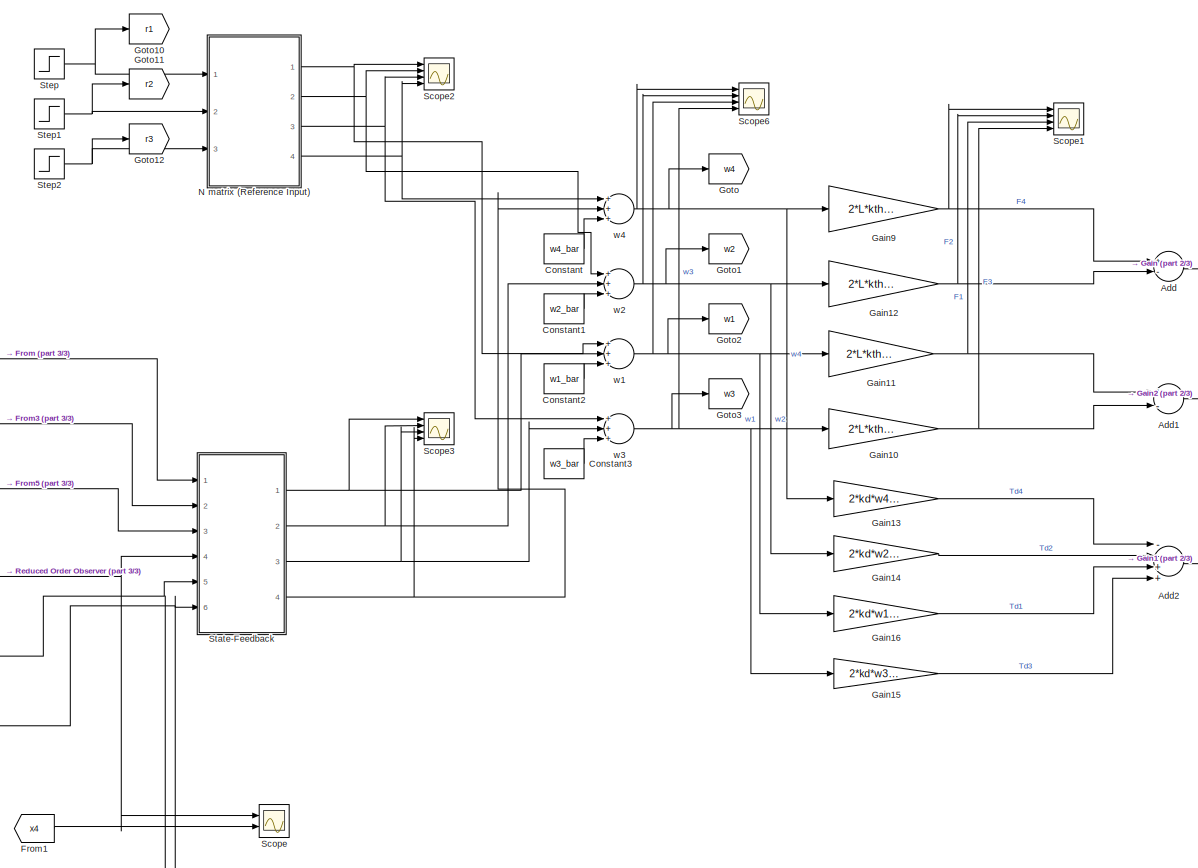
[diagram: root canvas - part 1/3, center side, full height]
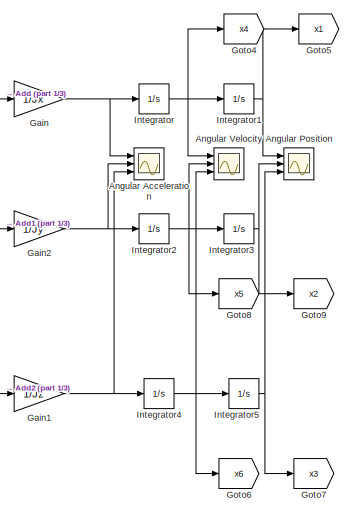
[diagram: root canvas - part 2/3, middle right region]
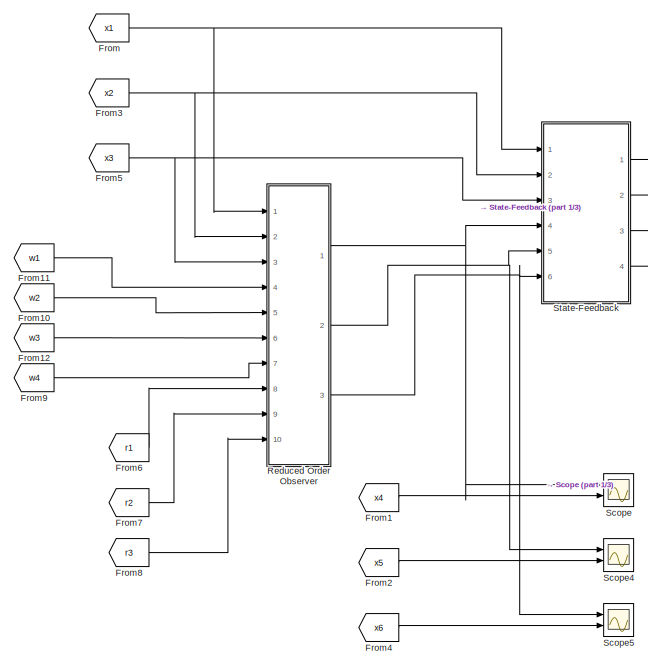
[diagram: root canvas - part 3/3, middle left region]
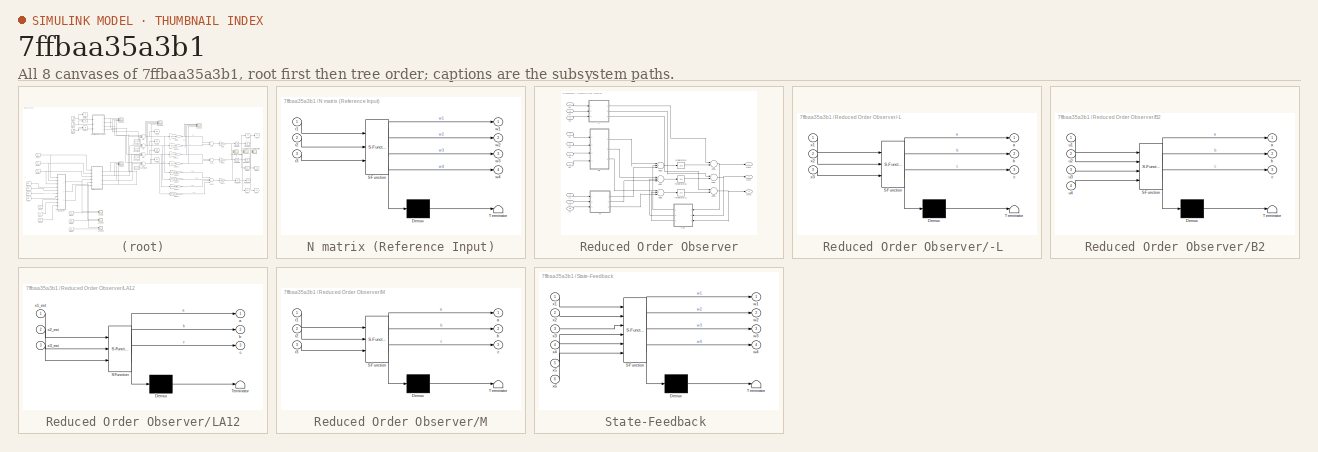
[diagram: thumbnail index - all 8 canvases of the model, root first then tree order]
MODEL slx_7ffbaa35a3b1
KIND model
CONFIG AbsTol = auto
CONFIG FixedStep = auto
CONFIG MaxStep = auto
CONFIG MinStep = auto
CONFIG RelTol = 1e-3
CONFIG SampleTimeConstraint = Unconstrained
CONFIG Solver = VariableStepAuto
CONFIG SolverMode = Auto
CONFIG SolverName = VariableStepAuto
CONFIG StartTime = 0.0
CONFIG StopTime = 20
BLOCK [Sum] Add
  InputSameDT = off
  Inputs = +-
  OutDataTypeStr = Inherit: Inherit via internal rule
  Ports = [2, 1]
  SaturateOnIntegerOverflow = off
BLOCK [Sum] Add1
  InputSameDT = off
  Inputs = +-
  OutDataTypeStr = Inherit: Inherit via internal rule
  Ports = [2, 1]
  SaturateOnIntegerOverflow = off
BLOCK [Sum] Add2
  InputSameDT = off
  Inputs = --++
  OutDataTypeStr = Inherit: Inherit via internal rule
  Ports = [4, 1]
  SaturateOnIntegerOverflow = off
BLOCK [Scope] Angular Acceleration
  NumInputPorts = 3
  Ports = [3]
  ScopeSpecificationString = Simulink.scopes.TimeScopeBlockCfg('CurrentConfiguration', extmgr.ConfigurationSet(extmgr.Configuration('Core','General UI',true),extmgr.Configuration('Core','Source UI',true),extmgr.Configuration('Sources','WiredSimulink',true,'DataLoggingVariableName','ScopeData3','DataLoggingLimitDataPoints',true,'DataLoggingSaveFormat','Array','DataLoggingDecimation','1','DataLoggingDecimateData',true),extmgr.C...<+1535ch>
BLOCK [Scope] Angular Position
  NumInputPorts = 3
  Ports = [3]
  ScopeSpecificationString = Simulink.scopes.TimeScopeBlockCfg('CurrentConfiguration', extmgr.ConfigurationSet(extmgr.Configuration('Core','General UI',true),extmgr.Configuration('Core','Source UI',true),extmgr.Configuration('Sources','WiredSimulink',true,'DataLoggingVariableName','ScopeData1','DataLoggingSaveFormat','Array','DataLoggingDecimation','1','DataLoggingDecimateData',true),extmgr.Configuration('Visuals','Time Domai...<+1630ch>
BLOCK [Scope] Angular Velocity
  NumInputPorts = 3
  Ports = [3]
  ScopeSpecificationString = Simulink.scopes.TimeScopeBlockCfg('CurrentConfiguration', extmgr.ConfigurationSet(extmgr.Configuration('Core','General UI',true),extmgr.Configuration('Core','Source UI',true),extmgr.Configuration('Sources','WiredSimulink',true,'DataLoggingVariableName','ScopeData2','DataLoggingLimitDataPoints',true,'DataLoggingSaveFormat','Array','DataLoggingDecimation','1','DataLoggingDecimateData',true),extmgr.C...<+3052ch>
BLOCK [Constant] Constant
  Value = w4_bar
BLOCK [Constant] Constant1
  Value = w2_bar
BLOCK [Constant] Constant2
  Value = w1_bar
BLOCK [Constant] Constant3
  Value = w3_bar
BLOCK [From] From
  GotoTag = x1
BLOCK [From] From1
  GotoTag = x4
BLOCK [From] From10
  GotoTag = w2
BLOCK [From] From11
  GotoTag = w1
BLOCK [From] From12
  GotoTag = w3
BLOCK [From] From2
  GotoTag = x5
BLOCK [From] From3
  GotoTag = x2
BLOCK [From] From4
  GotoTag = x6
BLOCK [From] From5
  GotoTag = x3
BLOCK [From] From6
  GotoTag = r1
BLOCK [From] From7
  GotoTag = r2
BLOCK [From] From8
  GotoTag = r3
BLOCK [From] From9
  GotoTag = w4
BLOCK [Gain] Gain
  Gain = 1/Jx
  OutDataTypeStr = Inherit: Inherit via internal rule
  ParamDataTypeStr = Inherit: Inherit via internal rule
  SaturateOnIntegerOverflow = off
BLOCK [Gain] Gain1
  Gain = 1/Jz
  OutDataTypeStr = Inherit: Inherit via internal rule
  ParamDataTypeStr = Inherit: Inherit via internal rule
  SaturateOnIntegerOverflow = off
BLOCK [Gain] Gain10
  Gain = 2*L*kth*w3_bar
  OutDataTypeStr = Inherit: Inherit via internal rule
  ParamDataTypeStr = Inherit: Inherit via internal rule
  SaturateOnIntegerOverflow = off
BLOCK [Gain] Gain11
  Gain = 2*L*kth*w1_bar
  OutDataTypeStr = Inherit: Inherit via internal rule
  ParamDataTypeStr = Inherit: Inherit via internal rule
  SaturateOnIntegerOverflow = off
BLOCK [Gain] Gain12
  Gain = 2*L*kth*w2_bar
  OutDataTypeStr = Inherit: Inherit via internal rule
  ParamDataTypeStr = Inherit: Inherit via internal rule
  SaturateOnIntegerOverflow = off
BLOCK [Gain] Gain13
  Gain = 2*kd*w4_bar
  OutDataTypeStr = Inherit: Inherit via internal rule
  ParamDataTypeStr = Inherit: Inherit via internal rule
  SaturateOnIntegerOverflow = off
BLOCK [Gain] Gain14
  Gain = 2*kd*w2_bar
  OutDataTypeStr = Inherit: Inherit via internal rule
  ParamDataTypeStr = Inherit: Inherit via internal rule
  SaturateOnIntegerOverflow = off
BLOCK [Gain] Gain15
  Gain = 2*kd*w3_bar
  OutDataTypeStr = Inherit: Inherit via internal rule
  ParamDataTypeStr = Inherit: Inherit via internal rule
  SaturateOnIntegerOverflow = off
BLOCK [Gain] Gain16
  Gain = 2*kd*w1_bar
  OutDataTypeStr = Inherit: Inherit via internal rule
  ParamDataTypeStr = Inherit: Inherit via internal rule
  SaturateOnIntegerOverflow = off
BLOCK [Gain] Gain2
  Gain = 1/Jy
  OutDataTypeStr = Inherit: Inherit via internal rule
  ParamDataTypeStr = Inherit: Inherit via internal rule
  SaturateOnIntegerOverflow = off
BLOCK [Gain] Gain9
  Gain = 2*L*kth*w4_bar
  OutDataTypeStr = Inherit: Inherit via internal rule
  ParamDataTypeStr = Inherit: Inherit via internal rule
  SaturateOnIntegerOverflow = off
BLOCK [Goto] Goto
  GotoTag = w4
BLOCK [Goto] Goto1
  GotoTag = w2
BLOCK [Goto] Goto10
  GotoTag = r1
BLOCK [Goto] Goto11
  GotoTag = r2
BLOCK [Goto] Goto12
  GotoTag = r3
BLOCK [Goto] Goto2
  GotoTag = w1
BLOCK [Goto] Goto3
  GotoTag = w3
BLOCK [Goto] Goto4
  GotoTag = x4
BLOCK [Goto] Goto5
  GotoTag = x1
BLOCK [Goto] Goto6
  GotoTag = x6
BLOCK [Goto] Goto7
  GotoTag = x3
BLOCK [Goto] Goto8
  GotoTag = x5
BLOCK [Goto] Goto9
  GotoTag = x2
BLOCK [Integrator] Integrator
  Ports = [1, 1]
BLOCK [Integrator] Integrator1
  Ports = [1, 1]
BLOCK [Integrator] Integrator2
  Ports = [1, 1]
BLOCK [Integrator] Integrator3
  Ports = [1, 1]
BLOCK [Integrator] Integrator4
  Ports = [1, 1]
BLOCK [Integrator] Integrator5
  Ports = [1, 1]
BLOCK [SubSystem] N matrix (Reference Input)
  ErrorFcn = Stateflow.Translate.translate
  PermitHierarchicalResolution = ExplicitOnly
  Ports = [3, 4]
  RequestExecContextInheritance = off
  SFBlockType = MATLAB Function
  TreatAsAtomicUnit = on
  Variant = off
BLOCK [Demux] N matrix (Reference Input)/ Demux 
  Outputs = 1
  Ports = [1, 1]
BLOCK [S-Function] N matrix (Reference Input)/ SFunction 
  EnableBusSupport = on
  FunctionName = sf_sfun
  Parameters = N
  PortCounts = [3 5]
  Ports = [3, 5]
  SFunctionDeploymentMode = off
  Tag = Stateflow S-Function state_feedback_reference 6
BLOCK [Terminator] N matrix (Reference Input)/ Terminator 
BLOCK [Inport] N matrix (Reference Input)/r1
  IconDisplay = Port number
BLOCK [Inport] N matrix (Reference Input)/r2
  IconDisplay = Port number
  Port = 2
BLOCK [Inport] N matrix (Reference Input)/r3
  IconDisplay = Port number
  Port = 3
BLOCK [Outport] N matrix (Reference Input)/w1
  IconDisplay = Port number
BLOCK [Outport] N matrix (Reference Input)/w2
  IconDisplay = Port number
  Port = 2
BLOCK [Outport] N matrix (Reference Input)/w3
  IconDisplay = Port number
  Port = 3
BLOCK [Outport] N matrix (Reference Input)/w4
  IconDisplay = Port number
  Port = 4
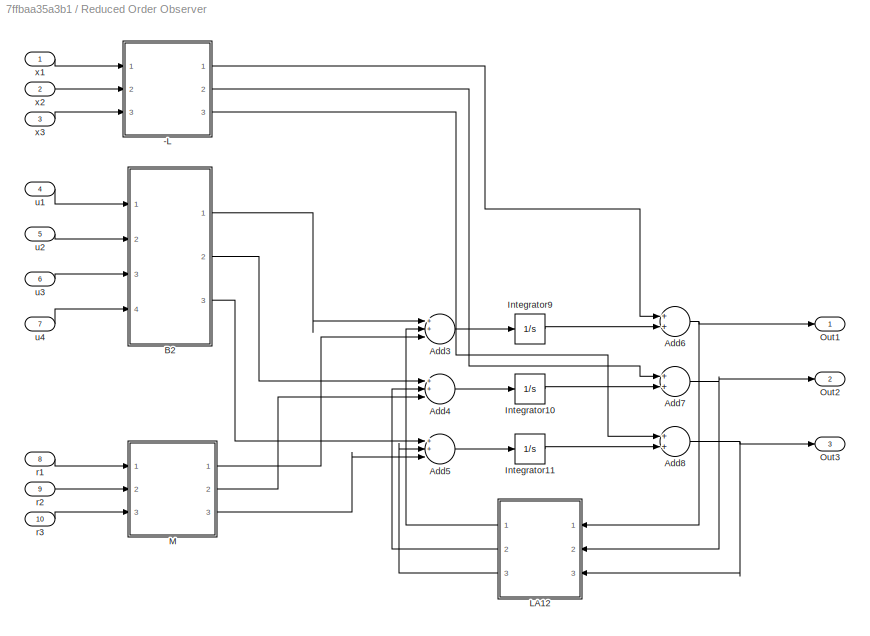
BLOCK [SubSystem] Reduced Order Observer
  Ports = [10, 3]
  RequestExecContextInheritance = off
  Variant = off
BLOCK [SubSystem] Reduced Order Observer/-L 
  ErrorFcn = Stateflow.Translate.translate
  PermitHierarchicalResolution = ExplicitOnly
  Ports = [3, 3]
  RequestExecContextInheritance = off
  SFBlockType = MATLAB Function
  TreatAsAtomicUnit = on
  Variant = off
BLOCK [Demux] Reduced Order Observer/-L / Demux 
  Outputs = 1
  Ports = [1, 1]
BLOCK [S-Function] Reduced Order Observer/-L / SFunction 
  EnableBusSupport = on
  FunctionName = sf_sfun
  Parameters = Lobs
  PortCounts = [3 4]
  Ports = [3, 4]
  SFunctionDeploymentMode = off
  Tag = Stateflow S-Function state_feedback_reference 3
BLOCK [Terminator] Reduced Order Observer/-L / Terminator 
BLOCK [Outport] Reduced Order Observer/-L /a
  IconDisplay = Port number
BLOCK [Outport] Reduced Order Observer/-L /b
  IconDisplay = Port number
  Port = 2
BLOCK [Outport] Reduced Order Observer/-L /c
  IconDisplay = Port number
  Port = 3
BLOCK [Inport] Reduced Order Observer/-L /x1
  IconDisplay = Port number
BLOCK [Inport] Reduced Order Observer/-L /x2
  IconDisplay = Port number
  Port = 2
BLOCK [Inport] Reduced Order Observer/-L /x3
  IconDisplay = Port number
  Port = 3
BLOCK [Sum] Reduced Order Observer/Add3
  InputSameDT = off
  Inputs = 3
  OutDataTypeStr = Inherit: Inherit via internal rule
  Ports = [3, 1]
  SaturateOnIntegerOverflow = off
BLOCK [Sum] Reduced Order Observer/Add4
  InputSameDT = off
  Inputs = 3
  OutDataTypeStr = Inherit: Inherit via internal rule
  Ports = [3, 1]
  SaturateOnIntegerOverflow = off
BLOCK [Sum] Reduced Order Observer/Add5
  InputSameDT = off
  Inputs = 3
  OutDataTypeStr = Inherit: Inherit via internal rule
  Ports = [3, 1]
  SaturateOnIntegerOverflow = off
BLOCK [Sum] Reduced Order Observer/Add6
  InputSameDT = off
  Inputs = 2
  OutDataTypeStr = Inherit: Inherit via internal rule
  Ports = [2, 1]
  SaturateOnIntegerOverflow = off
BLOCK [Sum] Reduced Order Observer/Add7
  InputSameDT = off
  Inputs = 2
  OutDataTypeStr = Inherit: Inherit via internal rule
  Ports = [2, 1]
  SaturateOnIntegerOverflow = off
BLOCK [Sum] Reduced Order Observer/Add8
  InputSameDT = off
  Inputs = 2
  OutDataTypeStr = Inherit: Inherit via internal rule
  Ports = [2, 1]
  SaturateOnIntegerOverflow = off
BLOCK [SubSystem] Reduced Order Observer/B2
  ErrorFcn = Stateflow.Translate.translate
  PermitHierarchicalResolution = ExplicitOnly
  Ports = [4, 3]
  RequestExecContextInheritance = off
  SFBlockType = MATLAB Function
  TreatAsAtomicUnit = on
  Variant = off
BLOCK [Demux] Reduced Order Observer/B2/ Demux 
  Outputs = 1
  Ports = [1, 1]
BLOCK [S-Function] Reduced Order Observer/B2/ SFunction 
  EnableBusSupport = on
  FunctionName = sf_sfun
  Parameters = B2
  PortCounts = [4 4]
  Ports = [4, 4]
  SFunctionDeploymentMode = off
  Tag = Stateflow S-Function state_feedback_reference 4
BLOCK [Terminator] Reduced Order Observer/B2/ Terminator 
BLOCK [Outport] Reduced Order Observer/B2/a
  IconDisplay = Port number
BLOCK [Outport] Reduced Order Observer/B2/b
  IconDisplay = Port number
  Port = 2
BLOCK [Outport] Reduced Order Observer/B2/c
  IconDisplay = Port number
  Port = 3
BLOCK [Inport] Reduced Order Observer/B2/u1
  IconDisplay = Port number
BLOCK [Inport] Reduced Order Observer/B2/u2
  IconDisplay = Port number
  Port = 2
BLOCK [Inport] Reduced Order Observer/B2/u3
  IconDisplay = Port number
  Port = 3
BLOCK [Inport] Reduced Order Observer/B2/u4
  IconDisplay = Port number
  Port = 4
BLOCK [Integrator] Reduced Order Observer/Integrator10
  Ports = [1, 1]
BLOCK [Integrator] Reduced Order Observer/Integrator11
  Ports = [1, 1]
BLOCK [Integrator] Reduced Order Observer/Integrator9
  Ports = [1, 1]
BLOCK [SubSystem] Reduced Order Observer/LA12
  ErrorFcn = Stateflow.Translate.translate
  PermitHierarchicalResolution = ExplicitOnly
  Ports = [3, 3]
  RequestExecContextInheritance = off
  SFBlockType = MATLAB Function
  TreatAsAtomicUnit = on
  Variant = off
BLOCK [Demux] Reduced Order Observer/LA12/ Demux 
  Outputs = 1
  Ports = [1, 1]
BLOCK [S-Function] Reduced Order Observer/LA12/ SFunction 
  EnableBusSupport = on
  FunctionName = sf_sfun
  Parameters = A12,Lobs
  PortCounts = [3 4]
  Ports = [3, 4]
  SFunctionDeploymentMode = off
  Tag = Stateflow S-Function state_feedback_reference 5
BLOCK [Terminator] Reduced Order Observer/LA12/ Terminator 
BLOCK [Outport] Reduced Order Observer/LA12/a
  IconDisplay = Port number
BLOCK [Outport] Reduced Order Observer/LA12/b
  IconDisplay = Port number
  Port = 2
BLOCK [Outport] Reduced Order Observer/LA12/c
  IconDisplay = Port number
  Port = 3
BLOCK [Inport] Reduced Order Observer/LA12/x1_est
  IconDisplay = Port number
BLOCK [Inport] Reduced Order Observer/LA12/x2_est
  IconDisplay = Port number
  Port = 2
BLOCK [Inport] Reduced Order Observer/LA12/x3_est
  IconDisplay = Port number
  Port = 3
BLOCK [SubSystem] Reduced Order Observer/M
  ErrorFcn = Stateflow.Translate.translate
  PermitHierarchicalResolution = ExplicitOnly
  Ports = [3, 3]
  RequestExecContextInheritance = off
  SFBlockType = MATLAB Function
  TreatAsAtomicUnit = on
  Variant = off
BLOCK [Demux] Reduced Order Observer/M/ Demux 
  Outputs = 1
  Ports = [1, 1]
BLOCK [S-Function] Reduced Order Observer/M/ SFunction 
  EnableBusSupport = on
  FunctionName = sf_sfun
  Parameters = M
  PortCounts = [3 4]
  Ports = [3, 4]
  SFunctionDeploymentMode = off
  Tag = Stateflow S-Function state_feedback_reference 2
BLOCK [Terminator] Reduced Order Observer/M/ Terminator 
BLOCK [Outport] Reduced Order Observer/M/a
  IconDisplay = Port number
BLOCK [Outport] Reduced Order Observer/M/b
  IconDisplay = Port number
  Port = 2
BLOCK [Outport] Reduced Order Observer/M/c
  IconDisplay = Port number
  Port = 3
BLOCK [Inport] Reduced Order Observer/M/r1
  IconDisplay = Port number
BLOCK [Inport] Reduced Order Observer/M/r2
  IconDisplay = Port number
  Port = 2
BLOCK [Inport] Reduced Order Observer/M/r3
  IconDisplay = Port number
  Port = 3
BLOCK [Outport] Reduced Order Observer/Out1
  IconDisplay = Port number
BLOCK [Outport] Reduced Order Observer/Out2
  IconDisplay = Port number
  Port = 2
BLOCK [Outport] Reduced Order Observer/Out3
  IconDisplay = Port number
  Port = 3
BLOCK [Inport] Reduced Order Observer/r1
  IconDisplay = Port number
  Port = 8
BLOCK [Inport] Reduced Order Observer/r2
  IconDisplay = Port number
  Port = 9
BLOCK [Inport] Reduced Order Observer/r3 
  IconDisplay = Port number
  Port = 10
BLOCK [Inport] Reduced Order Observer/u1
  IconDisplay = Port number
  Port = 4
BLOCK [Inport] Reduced Order Observer/u2
  IconDisplay = Port number
  Port = 5
BLOCK [Inport] Reduced Order Observer/u3
  IconDisplay = Port number
  Port = 6
BLOCK [Inport] Reduced Order Observer/u4
  IconDisplay = Port number
  Port = 7
BLOCK [Inport] Reduced Order Observer/x1
  IconDisplay = Port number
BLOCK [Inport] Reduced Order Observer/x2
  IconDisplay = Port number
  Port = 2
BLOCK [Inport] Reduced Order Observer/x3
  IconDisplay = Port number
  Port = 3
BLOCK [Scope] Scope
  NumInputPorts = 2
  Ports = [2]
  ScopeSpecificationString = Simulink.scopes.TimeScopeBlockCfg('CurrentConfiguration', extmgr.ConfigurationSet(extmgr.Configuration('Core','General UI',true),extmgr.Configuration('Core','Source UI',true),extmgr.Configuration('Sources','WiredSimulink',true,'DataLoggingVariableName','ScopeData3'),extmgr.Configuration('Visuals','Time Domain',true,'SerializedDisplays',{struct('MinYLimReal','-0.50516','MaxYLimReal','3.38946','YLab...<+1425ch>
BLOCK [Scope] Scope1
  NumInputPorts = 4
  Ports = [4]
  ScopeSpecificationString = Simulink.scopes.TimeScopeBlockCfg('CurrentConfiguration', extmgr.ConfigurationSet(extmgr.Configuration('Core','General UI',true),extmgr.Configuration('Core','Source UI',true),extmgr.Configuration('Sources','WiredSimulink',true),extmgr.Configuration('Visuals','Time Domain',true,'SerializedDisplays',{struct('MinYLimReal','-17825574068553026000000000000000000000000000000000000000000000000000000000000...<+3827ch>
BLOCK [Scope] Scope2
  NumInputPorts = 4
  Ports = [4]
  ScopeSpecificationString = Simulink.scopes.TimeScopeBlockCfg('CurrentConfiguration', extmgr.ConfigurationSet(extmgr.Configuration('Core','General UI',true),extmgr.Configuration('Core','Source UI',true),extmgr.Configuration('Sources','WiredSimulink',true,'DataLoggingVariableName','ScopeData1'),extmgr.Configuration('Visuals','Time Domain',true,'SerializedDisplays',{struct('MinYLimReal','-546.43049','MaxYLimReal','335.43377','...<+1492ch>
BLOCK [Scope] Scope3
  NumInputPorts = 4
  Ports = [4]
  ScopeSpecificationString = Simulink.scopes.TimeScopeBlockCfg('CurrentConfiguration', extmgr.ConfigurationSet(extmgr.Configuration('Core','General UI',true),extmgr.Configuration('Core','Source UI',true),extmgr.Configuration('Sources','WiredSimulink',true,'DataLoggingVariableName','ScopeData2'),extmgr.Configuration('Visuals','Time Domain',true,'SerializedDisplays',{struct('MinYLimReal','-40925.95391','MaxYLimReal','63959.8741...<+2214ch>
BLOCK [Scope] Scope4
  NumInputPorts = 2
  Ports = [2]
  ScopeSpecificationString = Simulink.scopes.TimeScopeBlockCfg('CurrentConfiguration', extmgr.ConfigurationSet(extmgr.Configuration('Core','General UI',true),extmgr.Configuration('Core','Source UI',true),extmgr.Configuration('Sources','WiredSimulink',true,'DataLoggingVariableName','ScopeData4','DataLoggingLimitDataPoints',true,'DataLoggingSaveFormat','Array','DataLoggingDecimation','1','DataLoggingDecimateData',true),extmgr.C...<+1522ch>
BLOCK [Scope] Scope5
  NumInputPorts = 2
  Ports = [2]
  ScopeSpecificationString = Simulink.scopes.TimeScopeBlockCfg('CurrentConfiguration', extmgr.ConfigurationSet(extmgr.Configuration('Core','General UI',true),extmgr.Configuration('Core','Source UI',true),extmgr.Configuration('Sources','WiredSimulink',true,'DataLoggingVariableName','ScopeData5','DataLoggingSaveFormat','Array','DataLoggingDecimation','1','DataLoggingDecimateData',true),extmgr.Configuration('Visuals','Time Domai...<+1563ch>
BLOCK [Scope] Scope6
  NumInputPorts = 4
  Ports = [4]
  ScopeSpecificationString = Simulink.scopes.TimeScopeBlockCfg('CurrentConfiguration', extmgr.ConfigurationSet(extmgr.Configuration('Core','General UI',true),extmgr.Configuration('Core','Source UI',true),extmgr.Configuration('Sources','WiredSimulink',true,'DataLoggingVariableName','ScopeData1'),extmgr.Configuration('Visuals','Time Domain',true,'SerializedDisplays',{struct('MinYLimReal','296.8751','MaxYLimReal','442.25328','YL...<+3554ch>
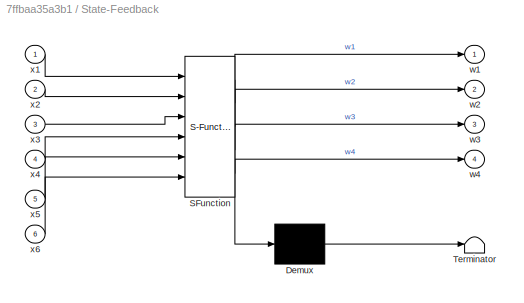
BLOCK [SubSystem] State-Feedback 
  ErrorFcn = Stateflow.Translate.translate
  PermitHierarchicalResolution = ExplicitOnly
  Ports = [6, 4]
  RequestExecContextInheritance = off
  SFBlockType = MATLAB Function
  TreatAsAtomicUnit = on
  Variant = off
BLOCK [Demux] State-Feedback / Demux 
  Outputs = 1
  Ports = [1, 1]
BLOCK [S-Function] State-Feedback / SFunction 
  EnableBusSupport = on
  FunctionName = sf_sfun
  Parameters = F
  PortCounts = [6 5]
  Ports = [6, 5]
  SFunctionDeploymentMode = off
  Tag = Stateflow S-Function state_feedback_reference 1
BLOCK [Terminator] State-Feedback / Terminator 
BLOCK [Outport] State-Feedback /w1
  IconDisplay = Port number
BLOCK [Outport] State-Feedback /w2
  IconDisplay = Port number
  Port = 2
BLOCK [Outport] State-Feedback /w3
  IconDisplay = Port number
  Port = 3
BLOCK [Outport] State-Feedback /w4
  IconDisplay = Port number
  Port = 4
BLOCK [Inport] State-Feedback /x1
  IconDisplay = Port number
BLOCK [Inport] State-Feedback /x2
  IconDisplay = Port number
  Port = 2
BLOCK [Inport] State-Feedback /x3
  IconDisplay = Port number
  Port = 3
BLOCK [Inport] State-Feedback /x4
  IconDisplay = Port number
  Port = 4
BLOCK [Inport] State-Feedback /x5
  IconDisplay = Port number
  Port = 5
BLOCK [Inport] State-Feedback /x6
  IconDisplay = Port number
  Port = 6
BLOCK [Step] Step
  After = 0.5
  SampleTime = 0
  Time = 5
BLOCK [Step] Step1
  After = 0
  SampleTime = 0
  Time = 5
BLOCK [Step] Step2
  After = 0
  SampleTime = 0
  Time = 5
BLOCK [Sum] w1
  InputSameDT = off
  Inputs = +++
  OutDataTypeStr = Inherit: Inherit via internal rule
  Ports = [3, 1]
  SaturateOnIntegerOverflow = off
BLOCK [Sum] w2
  InputSameDT = off
  Inputs = +++
  OutDataTypeStr = Inherit: Inherit via internal rule
  Ports = [3, 1]
  SaturateOnIntegerOverflow = off
BLOCK [Sum] w3
  InputSameDT = off
  Inputs = +++
  OutDataTypeStr = Inherit: Inherit via internal rule
  Ports = [3, 1]
  SaturateOnIntegerOverflow = off
BLOCK [Sum] w4
  InputSameDT = off
  Inputs = +++
  OutDataTypeStr = Inherit: Inherit via internal rule
  Ports = [3, 1]
  SaturateOnIntegerOverflow = off
LINE Add1:1 -> Gain2:1
LINE Add2:1 -> Gain1:1
LINE Add:1 -> Gain:1
LINE Constant1:1 -> w2:3
LINE Constant2:1 -> w1:3
LINE Constant3:1 -> w3:3
LINE Constant:1 -> w4:3
LINE From10:1 -> Reduced Order Observer:5
LINE From11:1 -> Reduced Order Observer:4
LINE From12:1 -> Reduced Order Observer:6
LINE From1:1 -> Scope:2
LINE From2:1 -> Scope4:2
NET From3:1 -> Reduced Order Observer:2, State-Feedback :2
LINE From4:1 -> Scope5:2
NET From5:1 -> Reduced Order Observer:3, State-Feedback :3
LINE From6:1 -> Reduced Order Observer:8
LINE From7:1 -> Reduced Order Observer:9
LINE From8:1 -> Reduced Order Observer:10
LINE From9:1 -> Reduced Order Observer:7
NET From:1 -> Reduced Order Observer:1, State-Feedback :1
NET Gain10:1 -> Add1:2, Scope1:4
NET Gain11:1 -> Add1:1, Scope1:3
NET Gain12:1 -> Add:2, Scope1:2
LINE Gain13:1 -> Add2:1
LINE Gain14:1 -> Add2:2
LINE Gain15:1 -> Add2:4
LINE Gain16:1 -> Add2:3
NET Gain1:1 -> Angular Acceleration:3, Integrator4:1
NET Gain2:1 -> Angular Acceleration:2, Integrator2:1
NET Gain9:1 -> Add:1, Scope1:1
NET Gain:1 -> Angular Acceleration:1, Integrator:1
NET Integrator1:1 -> Angular Position:1, Goto5:1
NET Integrator2:1 -> Angular Velocity:2, Goto8:1, Integrator3:1
NET Integrator3:1 -> Angular Position:2, Goto9:1
NET Integrator4:1 -> Angular Velocity:3, Goto6:1, Integrator5:1
NET Integrator5:1 -> Angular Position:3, Goto7:1
NET Integrator:1 -> Angular Velocity:1, Goto4:1, Integrator1:1
NET N matrix (Reference Input):1 -> Scope2:1, w1:1
NET N matrix (Reference Input):2 -> Scope2:2, w2:1
NET N matrix (Reference Input):3 -> Scope2:3, w3:1
NET N matrix (Reference Input):4 -> Scope2:4, w4:1
LINE Reduced Order Observer/-L :1 -> Reduced Order Observer/Add6:1
LINE Reduced Order Observer/-L :2 -> Reduced Order Observer/Add7:1
LINE Reduced Order Observer/-L :3 -> Reduced Order Observer/Add8:1
LINE Reduced Order Observer/Add3:1 -> Reduced Order Observer/Integrator9:1
LINE Reduced Order Observer/Add4:1 -> Reduced Order Observer/Integrator10:1
LINE Reduced Order Observer/Add5:1 -> Reduced Order Observer/Integrator11:1
NET Reduced Order Observer/Add6:1 -> Reduced Order Observer/LA12:1, Reduced Order Observer/Out1:1
NET Reduced Order Observer/Add7:1 -> Reduced Order Observer/LA12:2, Reduced Order Observer/Out2:1
NET Reduced Order Observer/Add8:1 -> Reduced Order Observer/LA12:3, Reduced Order Observer/Out3:1
LINE Reduced Order Observer/B2:1 -> Reduced Order Observer/Add3:1
LINE Reduced Order Observer/B2:2 -> Reduced Order Observer/Add4:1
LINE Reduced Order Observer/B2:3 -> Reduced Order Observer/Add5:1
LINE Reduced Order Observer/Integrator10:1 -> Reduced Order Observer/Add7:2
LINE Reduced Order Observer/Integrator11:1 -> Reduced Order Observer/Add8:2
LINE Reduced Order Observer/Integrator9:1 -> Reduced Order Observer/Add6:2
LINE Reduced Order Observer/LA12:1 -> Reduced Order Observer/Add3:2
LINE Reduced Order Observer/LA12:2 -> Reduced Order Observer/Add4:2
LINE Reduced Order Observer/LA12:3 -> Reduced Order Observer/Add5:2
LINE Reduced Order Observer/M:1 -> Reduced Order Observer/Add3:3
LINE Reduced Order Observer/M:2 -> Reduced Order Observer/Add4:3
LINE Reduced Order Observer/M:3 -> Reduced Order Observer/Add5:3
LINE Reduced Order Observer/r1:1 -> Reduced Order Observer/M:1
LINE Reduced Order Observer/r2:1 -> Reduced Order Observer/M:2
LINE Reduced Order Observer/r3 :1 -> Reduced Order Observer/M:3
LINE Reduced Order Observer/u1:1 -> Reduced Order Observer/B2:1
LINE Reduced Order Observer/u2:1 -> Reduced Order Observer/B2:2
LINE Reduced Order Observer/u3:1 -> Reduced Order Observer/B2:3
LINE Reduced Order Observer/u4:1 -> Reduced Order Observer/B2:4
LINE Reduced Order Observer/x1:1 -> Reduced Order Observer/-L :1
LINE Reduced Order Observer/x2:1 -> Reduced Order Observer/-L :2
LINE Reduced Order Observer/x3:1 -> Reduced Order Observer/-L :3
NET Reduced Order Observer:1 -> Scope:1, State-Feedback :4
NET Reduced Order Observer:2 -> Scope4:1, State-Feedback :5
NET Reduced Order Observer:3 -> Scope5:1, State-Feedback :6
NET State-Feedback :1 -> Scope3:1, w1:2
NET State-Feedback :2 -> Scope3:2, w2:2
NET State-Feedback :3 -> Scope3:3, w3:2
NET State-Feedback :4 -> Scope3:4, w4:2
NET Step1:1 -> Goto11:1, N matrix (Reference Input):2
NET Step2:1 -> Goto12:1, N matrix (Reference Input):3
NET Step:1 -> Goto10:1, N matrix (Reference Input):1
NET w1:1 -> Gain11:1, Gain16:1, Goto2:1, Scope6:3
NET w2:1 -> Gain12:1, Gain14:1, Goto1:1, Scope6:2
NET w3:1 -> Gain10:1, Gain15:1, Goto3:1, Scope6:4
NET w4:1 -> Gain13:1, Gain9:1, Goto:1, Scope6:1
note: NET lines group one-source signal fan-out (src -> all destinations, sorted); 1:1 wires keep LINE
CHART State-Feedback
 states=1 transitions=1
  STATE_LABEL 'eML_blk_kernel()'
  STATE_LABEL 'SCRIPT:\nfunction [w1,w2,w3,w4] = F_matrix(x1, x2, x3, x4, x5, x6, F)\nx=[x1;\n    x2;\n    x3;\n    x4;\n    x5;\n    x6];\n\nw=F*x;\n\nw1=w(1);\nw2=w(2);\nw3=w(3);\nw4=w(4);'
CHART Reduced Order Observer/M states=1 transitions=1
  STATE_LABEL 'eML_blk_kernel()'
  STATE_LABEL 'SCRIPT:\nfunction [a,b,c] = M_matrix(r1, r2, r3, M)\nr=[r1;\n    r2;\n    r3];\n\nabc=M*r;\n\na=abc(1);\nb=abc(2);\nc=abc(3);'
CHART Reduced Order Observer/-L
 states=1 transitions=1
  STATE_LABEL 'eML_blk_kernel()'
  STATE_LABEL 'SCRIPT:\nfunction [a,b,c] = minusL_matrix(x1, x2, x3, Lobs)\nx=[x1;\n    x2;\n    x3];\n\nabc=-Lobs*x;\n\na=abc(1);\nb=abc(2);\nc=abc(3);'
CHART Reduced Order Observer/B2 states=1 transitions=1
  STATE_LABEL 'eML_blk_kernel()'
  STATE_LABEL 'SCRIPT:\nfunction [a, b, c] = B2_matrix(u1, u2, u3, u4, B2)\nu=[u1;\n    u2;\n    u3;\n    u4];\n\nabc=B2*u;\n\na=abc(1);\nb=abc(2);\nc=abc(3);\n'
CHART Reduced Order Observer/LA12 states=1 transitions=1
  STATE_LABEL 'eML_blk_kernel()'
  STATE_LABEL 'SCRIPT:\nfunction [a,b,c] = LA12_matrix(x1_est, x2_est, x3_est, Lobs, A12)\nx=[x1_est;\n    x2_est;\n    x3_est];\n\nabc=Lobs*A12*x;\n\na=abc(1);\nb=abc(2);\nc=abc(3);'
CHART N matrix
 (Reference Input) states=1 transitions=1
  STATE_LABEL 'eML_blk_kernel()'
  STATE_LABEL 'SCRIPT:\nfunction [w1,w2,w3,w4] = N_matrix(r1, r2, r3,N)\nr=[r1;\n    r2;\n    r3];\n\nw=N*r;\n\nw1=w(1);\nw2=w(2);\nw3=w(3);\nw4=w(4);'
